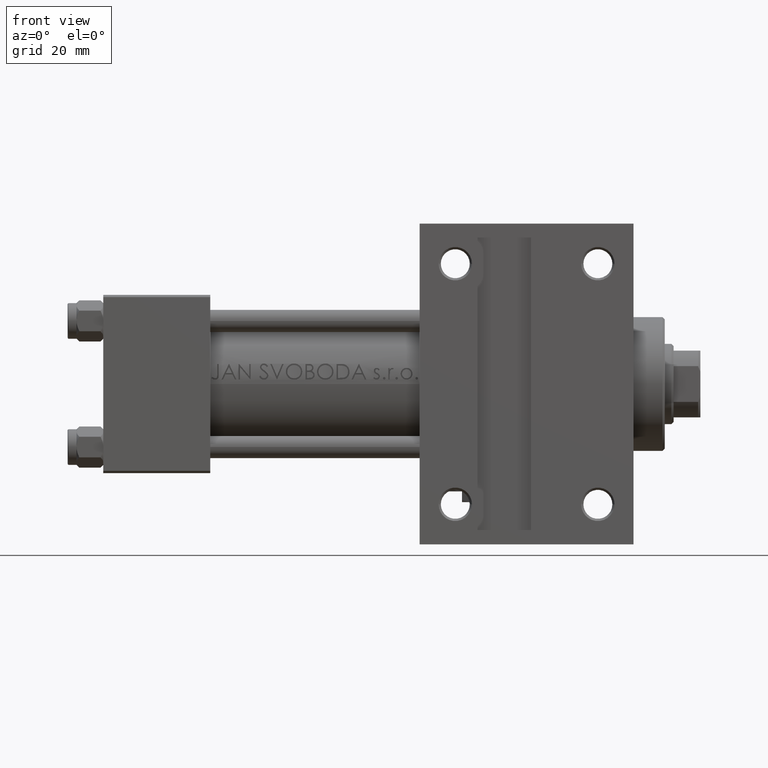
[diagram: clean part render]
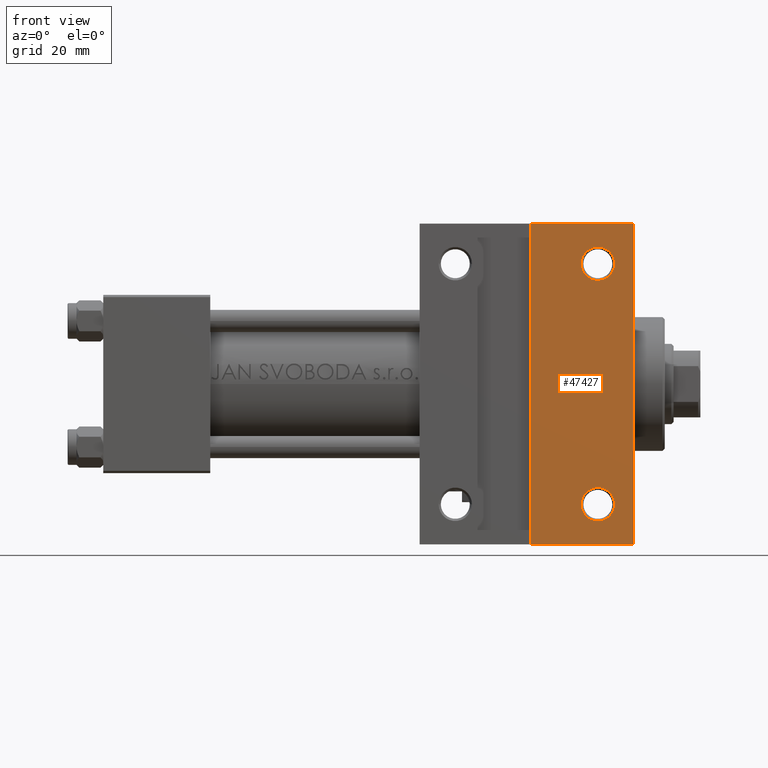
[diagram: same view with one face highlighted and labeled with its STEP entity id]
A machine part, front view. The second image highlights one B-rep face of the part: STEP entity #47427.
In plain terms, the highlighted planar face has unit normal (0, -1, 0).
Its self-contained STEP definition (entity closure, byte-faithful):
#256 = CARTESIAN_POINT ( 'NONE',  ( 95.99999999999997158, -35.99999999999999289, -20.00000000000000000 ) ) ;
#915 = EDGE_CURVE ( 'NONE', #7968, #17033, #12685, .T. ) ;
#3043 = DIRECTION ( 'NONE',  ( -0.000000000000000000, -0.000000000000000000, 1.000000000000000000 ) ) ;
#4299 = VERTEX_POINT ( 'NONE', #45741 ) ;
#5815 = ORIENTED_EDGE ( 'NONE', *, *, #45891, .F. ) ;
#6782 = VECTOR ( 'NONE', #24285, 1000.000000000000000 ) ;
#6861 = EDGE_LOOP ( 'NONE', ( #5815, #17606, #17292, #26783 ) ) ;
#7283 = VECTOR ( 'NONE', #40037, 1000.000000000000000 ) ;
#7684 = FACE_BOUND ( 'NONE', #47246, .T. ) ;
#7968 = VERTEX_POINT ( 'NONE', #19748 ) ;
#7987 = DIRECTION ( 'NONE',  ( -1.000000000000000000, 0.000000000000000000, 0.000000000000000000 ) ) ;
#8021 = VECTOR ( 'NONE', #12200, 1000.000000000000000 ) ;
#9631 = LINE ( 'NONE', #12883, #7283 ) ;
#11293 = CARTESIAN_POINT ( 'NONE',  ( 71.00000000000001421, -36.00000000000000711, -20.00000000000000000 ) ) ;
#11608 = EDGE_CURVE ( 'NONE', #19116, #28046, #15599, .T. ) ;
#11914 = FACE_BOUND ( 'NONE', #20893, .T. ) ;
#12200 = DIRECTION ( 'NONE',  ( -0.000000000000000000, -1.000000000000000000, -0.000000000000000000 ) ) ;
#12685 = CIRCLE ( 'NONE', #20628, 3.749950000000001893 ) ;
#12883 = CARTESIAN_POINT ( 'NONE',  ( 119.0000000000000142, 19.99999999999999645, -20.00000000000000000 ) ) ;
#13079 = DIRECTION ( 'NONE',  ( -1.000000000000000000, 0.000000000000000000, 0.000000000000000000 ) ) ;
#15277 = LINE ( 'NONE', #11293, #43375 ) ;
#15599 = LINE ( 'NONE', #30793, #6782 ) ;
#17033 = VERTEX_POINT ( 'NONE', #17180 ) ;
#17180 = CARTESIAN_POINT ( 'NONE',  ( 114.7499500000000126, 27.00000000000000000, -20.00000000000000000 ) ) ;
#17292 = ORIENTED_EDGE ( 'NONE', *, *, #46709, .T. ) ;
#17606 = ORIENTED_EDGE ( 'NONE', *, *, #11608, .T. ) ;
#18205 = AXIS2_PLACEMENT_3D ( 'NONE', #46446, #42714, #37984 ) ;
#19116 = VERTEX_POINT ( 'NONE', #48076 ) ;
#19152 = DIRECTION ( 'NONE',  ( -1.000000000000000000, 0.000000000000000000, -0.000000000000000000 ) ) ;
#19269 = ORIENTED_EDGE ( 'NONE', *, *, #32779, .T. ) ;
#19288 = CARTESIAN_POINT ( 'NONE',  ( 111.0000000000000142, -27.00000000000000000, -20.00000000000000000 ) ) ;
#19630 = DIRECTION ( 'NONE',  ( 0.000000000000000000, 0.000000000000000000, -1.000000000000000000 ) ) ;
#19748 = CARTESIAN_POINT ( 'NONE',  ( 107.2500500000000159, 27.00000000000000000, -20.00000000000000000 ) ) ;
#20562 = CIRCLE ( 'NONE', #33311, 3.749950000000001893 ) ;
#20628 = AXIS2_PLACEMENT_3D ( 'NONE', #40252, #3043, #13079 ) ;
#20893 = EDGE_LOOP ( 'NONE', ( #27889, #43536 ) ) ;
#22044 = CARTESIAN_POINT ( 'NONE',  ( 118.9999999999999716, 36.00000000000001421, -20.00000000000000000 ) ) ;
#22734 = DIRECTION ( 'NONE',  ( -1.000000000000000000, 1.445602896647339656E-16, -0.000000000000000000 ) ) ;
#23128 = EDGE_CURVE ( 'NONE', #44163, #43916, #20562, .T. ) ;
#23171 = LINE ( 'NONE', #256, #8021 ) ;
#23196 = EDGE_CURVE ( 'NONE', #17033, #7968, #38917, .T. ) ;
#23579 = ORIENTED_EDGE ( 'NONE', *, *, #23128, .T. ) ;
#24237 = EDGE_CURVE ( 'NONE', #28201, #4299, #15277, .T. ) ;
#24285 = DIRECTION ( 'NONE',  ( 1.000000000000000000, 1.301042606982605715E-15, 0.000000000000000000 ) ) ;
#26783 = ORIENTED_EDGE ( 'NONE', *, *, #24237, .T. ) ;
#27584 = CARTESIAN_POINT ( 'NONE',  ( 119.0000000000000142, 19.99999999999999645, -20.00000000000000000 ) ) ;
#27889 = ORIENTED_EDGE ( 'NONE', *, *, #915, .T. ) ;
#28046 = VERTEX_POINT ( 'NONE', #22044 ) ;
#28201 = VERTEX_POINT ( 'NONE', #44929 ) ;
#28792 = CARTESIAN_POINT ( 'NONE',  ( 107.2500500000000159, -27.00000000000000000, -20.00000000000000000 ) ) ;
#30793 = CARTESIAN_POINT ( 'NONE',  ( 70.99999999999998579, 35.99999999999995026, -20.00000000000000000 ) ) ;
#30991 = DIRECTION ( 'NONE',  ( -0.000000000000000000, -0.000000000000000000, 1.000000000000000000 ) ) ;
#32779 = EDGE_CURVE ( 'NONE', #43916, #44163, #33172, .T. ) ;
#33172 = CIRCLE ( 'NONE', #42732, 3.749950000000001893 ) ;
#33311 = AXIS2_PLACEMENT_3D ( 'NONE', #19288, #30991, #34249 ) ;
#33920 = CARTESIAN_POINT ( 'NONE',  ( 111.0000000000000142, -27.00000000000000000, -20.00000000000000000 ) ) ;
#34249 = DIRECTION ( 'NONE',  ( -1.000000000000000000, 0.000000000000000000, 0.000000000000000000 ) ) ;
#35127 = AXIS2_PLACEMENT_3D ( 'NONE', #27584, #19630, #19152 ) ;
#35239 = CARTESIAN_POINT ( 'NONE',  ( 114.7499500000000126, -27.00000000000000000, -20.00000000000000000 ) ) ;
#37984 = DIRECTION ( 'NONE',  ( -1.000000000000000000, 0.000000000000000000, 0.000000000000000000 ) ) ;
#38337 = FACE_OUTER_BOUND ( 'NONE', #6861, .T. ) ;
#38575 = PLANE ( 'NONE',  #35127 ) ;
#38917 = CIRCLE ( 'NONE', #18205, 3.749950000000001893 ) ;
#40037 = DIRECTION ( 'NONE',  ( 0.000000000000000000, -1.000000000000000000, 0.000000000000000000 ) ) ;
#40252 = CARTESIAN_POINT ( 'NONE',  ( 111.0000000000000142, 27.00000000000000000, -20.00000000000000000 ) ) ;
#42714 = DIRECTION ( 'NONE',  ( -0.000000000000000000, -0.000000000000000000, 1.000000000000000000 ) ) ;
#42732 = AXIS2_PLACEMENT_3D ( 'NONE', #33920, #45875, #7987 ) ;
#43375 = VECTOR ( 'NONE', #22734, 1000.000000000000000 ) ;
#43536 = ORIENTED_EDGE ( 'NONE', *, *, #23196, .T. ) ;
#43916 = VERTEX_POINT ( 'NONE', #28792 ) ;
#44163 = VERTEX_POINT ( 'NONE', #35239 ) ;
#44929 = CARTESIAN_POINT ( 'NONE',  ( 119.0000000000000000, -36.00000000000001421, -20.00000000000000000 ) ) ;
#45741 = CARTESIAN_POINT ( 'NONE',  ( 95.99999999999997158, -35.99999999999999289, -20.00000000000000000 ) ) ;
#45875 = DIRECTION ( 'NONE',  ( -0.000000000000000000, -0.000000000000000000, 1.000000000000000000 ) ) ;
#45891 = EDGE_CURVE ( 'NONE', #19116, #4299, #23171, .T. ) ;
#46446 = CARTESIAN_POINT ( 'NONE',  ( 111.0000000000000142, 27.00000000000000000, -20.00000000000000000 ) ) ;
#46709 = EDGE_CURVE ( 'NONE', #28046, #28201, #9631, .T. ) ;
#47246 = EDGE_LOOP ( 'NONE', ( #19269, #23579 ) ) ;
#47427 = ADVANCED_FACE ( 'NONE', ( #38337, #7684, #11914 ), #38575, .T. ) ;
#48076 = CARTESIAN_POINT ( 'NONE',  ( 95.99999999999997158, 35.99999999999995026, -20.00000000000000000 ) ) ;